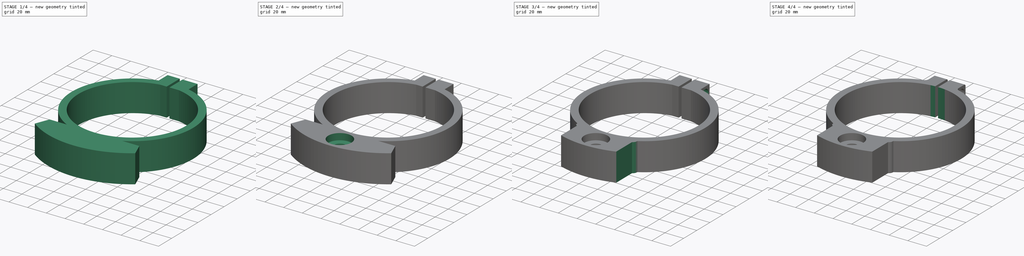
[diagram: build sequence overview — one tinted view per stage of 4, left to right]
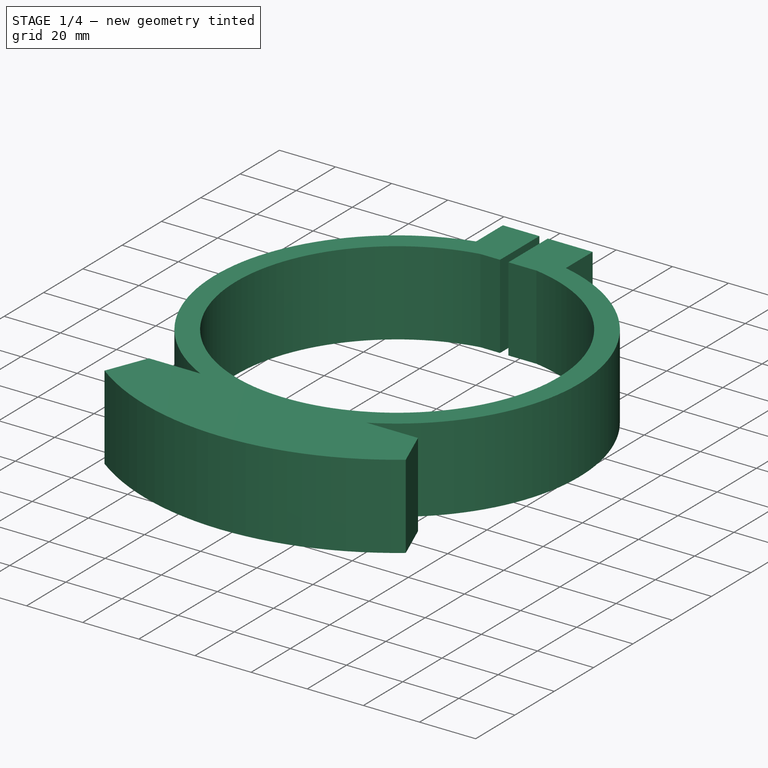
[diagram: stage 1 of 4 — iso view after this stage's code; geometry added in this stage tinted green]
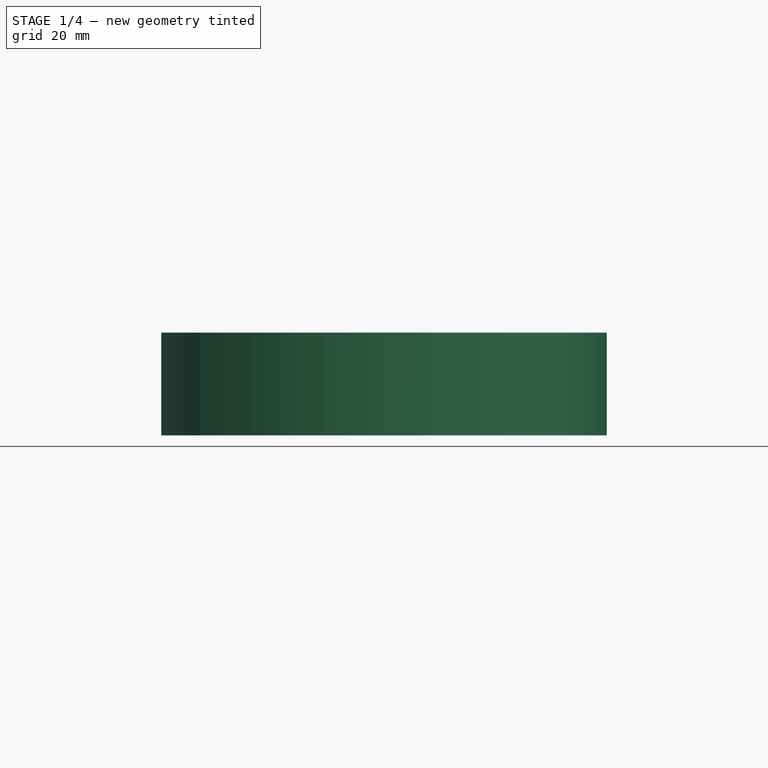
[diagram: stage 1 of 4 — front view after this stage's code; geometry added in this stage tinted green]
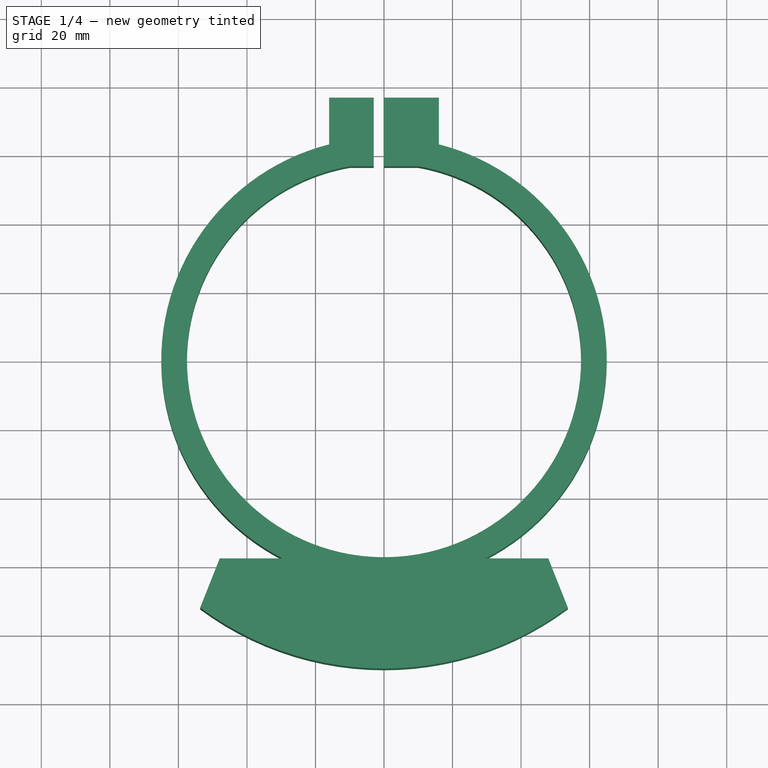
[diagram: stage 1 of 4 — top view after this stage's code; geometry added in this stage tinted green]
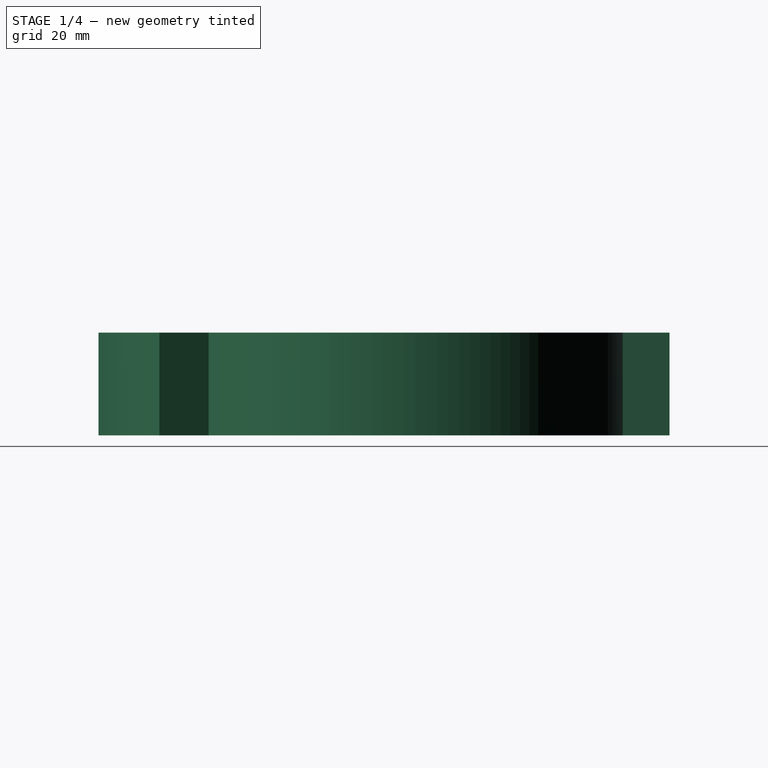
[diagram: stage 1 of 4 — right view after this stage's code; geometry added in this stage tinted green]
FCSTD DOCUMENT  (FreeCAD 1.0R39109 (Git))
Label: PVC_lock
License: All rights reserved
LicenseURL: https://en.wikipedia.org/wiki/All_rights_reserved
objects: Sketcher::SketchObject×8, PartDesign::Pocket×5, PartDesign::Pad×2, PartDesign::Chamfer×2, PartDesign::Hole×2, PartDesign::Fillet×2, PartDesign::Body×1
note: 56 computed .brp shape members not serialized (recipe doc carries the construction recipe); baked Part::Feature solids carry a one-line shape summary decoded from their .brp

FEATURE [Sketcher::SketchObject] Sketch
  ArcFitTolerance = 1e-06
  AttachmentSupport = -> [XY_Plane]
  FullyConstrained = false
  MakeInternals = false
  MapMode = 5
  sketch-geometry (19):
    g0: ArcOfCircle CenterX=0 CenterY=0 CenterZ=0 NormalX=0 NormalY=0 NormalZ=1 AngleXU=0 Radius=57.5 StartAngle=1.7456 EndAngle=7.67918
    g1: ArcOfCircle CenterX=0 CenterY=0 CenterZ=0 NormalX=0 NormalY=0 NormalZ=1 AngleXU=0 Radius=65 StartAngle=5.18581 EndAngle=7.60527
    g2: ArcOfCircle CenterX=0 CenterY=0 CenterZ=0 NormalX=0 NormalY=0 NormalZ=1 AngleXU=0 Radius=90 StartAngle=3.83972 EndAngle=5.58505
    g3: LineSegment StartX=68.944 StartY=-57.8509 StartZ=0 EndX=29.6357 EndY=-57.8509 EndZ=0
    g4: LineSegment StartX=-68.944 StartY=-57.8509 StartZ=0 EndX=-29.6357 EndY=-57.8509 EndZ=0
    g5: LineSegment [constr] StartX=-10 StartY=0 StartZ=0 EndX=10 EndY=0 EndZ=0
    g6: LineSegment [constr] StartX=10 StartY=0 StartZ=0 EndX=10 EndY=100 EndZ=0
    g7: LineSegment [constr] StartX=-10 StartY=0 StartZ=0 EndX=-10 EndY=100 EndZ=0
    g8: ArcOfCircle CenterX=0 CenterY=0 CenterZ=0 NormalX=0 NormalY=0 NormalZ=1 AngleXU=0 Radius=65 StartAngle=1.81951 EndAngle=4.23897
    g9: LineSegment StartX=16 StartY=63 StartZ=0 EndX=16 EndY=76.6238 EndZ=0
    g10: LineSegment StartX=16 StartY=76.6238 StartZ=0 EndX=10 EndY=76.6238 EndZ=0
    g11: LineSegment StartX=-10 StartY=76.6238 StartZ=0 EndX=-16 EndY=76.6238 EndZ=0
    g12: LineSegment StartX=-16 StartY=76.6238 StartZ=0 EndX=-16 EndY=63 EndZ=0
    g13: LineSegment StartX=-10 StartY=56.6238 StartZ=0 EndX=-3 EndY=56.6238 EndZ=0
    g14: LineSegment StartX=-3 StartY=56.6238 StartZ=0 EndX=-3 EndY=76.6238 EndZ=0
    g15: LineSegment StartX=-3 StartY=76.6238 StartZ=0 EndX=-10 EndY=76.6238 EndZ=0
    g16: LineSegment StartX=10 StartY=76.6238 StartZ=0 EndX=0 EndY=76.6238 EndZ=0
    g17: LineSegment StartX=0 StartY=76.6238 StartZ=0 EndX=0 EndY=56.6238 EndZ=0
    g18: LineSegment StartX=0 StartY=56.6238 StartZ=0 EndX=10 EndY=56.6238 EndZ=0
  constraints (52):
    c: Diameter(g0) = 115
    c: Coincident(g0,g-1)
    c: Diameter(g1) = 130
    c: Coincident(g1,g0)
    c: Radius(g2) = 90
    c: Angle(g2) = 1.74533
    c: Coincident(g2,g0)
    c: Coincident(g3,g2)
    c: Coincident(g4,g2)
    c: Horizontal(g4)
    c: Horizontal(g3)
    c: DistanceY(g3,g4) = 0
    c: Coincident(g8,g4)
    c: Coincident(g1,g3)
    c: Distance(g5) = 20
    c: PointOnObject(g5,g-1)
    c: PointOnObject(g5,g-1)
    c: DistanceX(g0,g5) = 10
    c: Distance(g6) = 100
    c: Coincident(g6,g5)
    c: Vertical(g6)
    c: Distance(g7) = 100
    c: Coincident(g7,g5)
    c: Vertical(g7)
    c: PointOnObject(g0,g6)
    c: Equal(g1,g8)
    c: Coincident(g1,g8)
    c: PointOnObject(g0,g7)
    c: Coincident(g9,g10)
    c: Horizontal(g10)
    c: Vertical(g9)
    c: Distance(g0,g10) = 20
    c: Coincident(g11,g12)
    c: Vertical(g12)
    c: Horizontal(g11)
    c: Coincident(g13,g14)
    c: Coincident(g14,g15)
    c: Vertical(g14)
    c: Horizontal(g13)
    c: Horizontal(g15)
    c: Distance(g15,g14) = 7
    c: Distance(g13,g15) = 20
    c: Coincident(g16,g17)
    c: Coincident(g17,g18)
    c: Horizontal(g16)
    c: Horizontal(g18)
    c: Vertical(g17)
    c: Distance(g16,g18) = 20
    c: Coincident(g16,g10)
    c: PointOnObject(g17,g-2)
    c: Coincident(g12,g8)
    c: Coincident(g9,g1)
FEATURE [PartDesign::Pad] Pad
  Direction = (0,0,1)
  Length = 30
  Length2 = 10
  Profile = -> Sketch
  ReferenceAxis = -> Sketch [N_Axis]
  Refine = true
  Suppressed = false
  Type = 0
FEATURE [PartDesign::Chamfer] Chamfer
  Angle = 45
  Base = -> Pad [Edge33]
  BaseFeature = -> Pad
  ChamferType = 0
  FlipDirection = false
  Refine = true
  Size = 21
  Size2 = 1
  SupportTransform = false
  Suppressed = false
  UseAllEdges = false
FEATURE [PartDesign::Chamfer] Chamfer001
  Angle = 45
  Base = -> Chamfer [Edge17]
  BaseFeature = -> Chamfer
  ChamferType = 0
  FlipDirection = false
  Refine = true
  Size = 21
  Size2 = 1
  SupportTransform = false
  Suppressed = false
  UseAllEdges = false
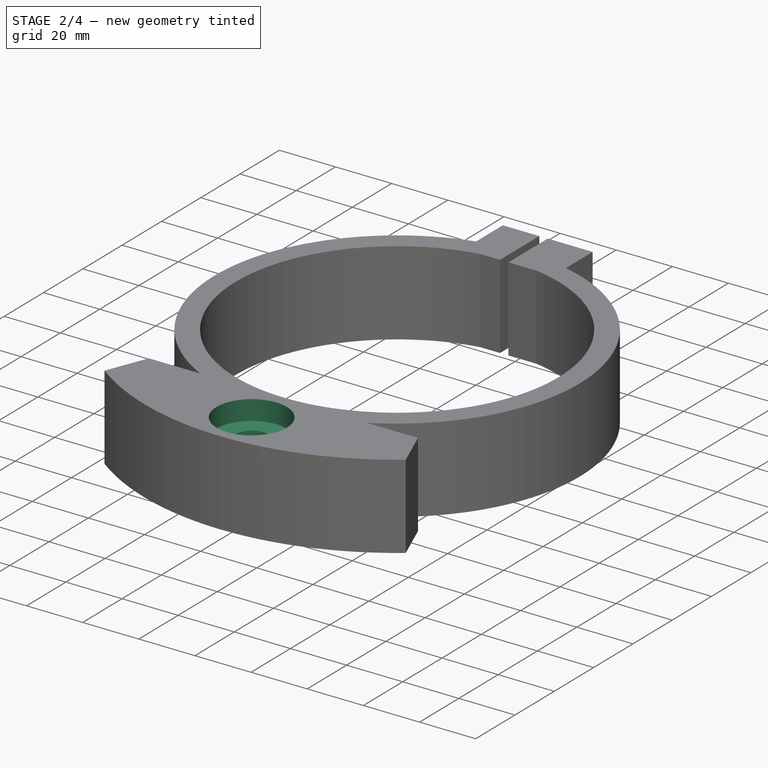
[diagram: stage 2 of 4 — iso view after this stage's code; geometry added in this stage tinted green]
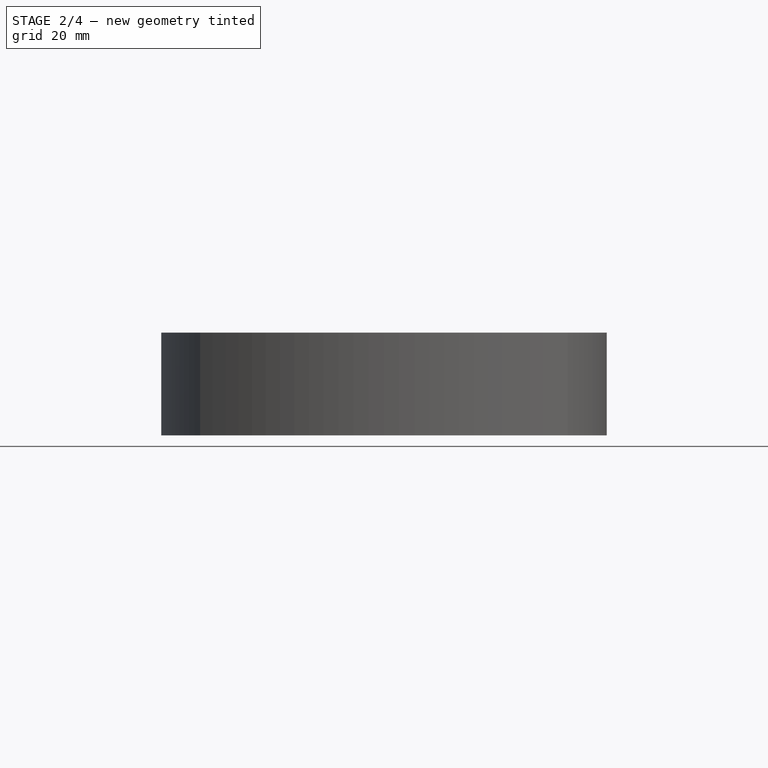
[diagram: stage 2 of 4 — front view after this stage's code; geometry added in this stage tinted green]
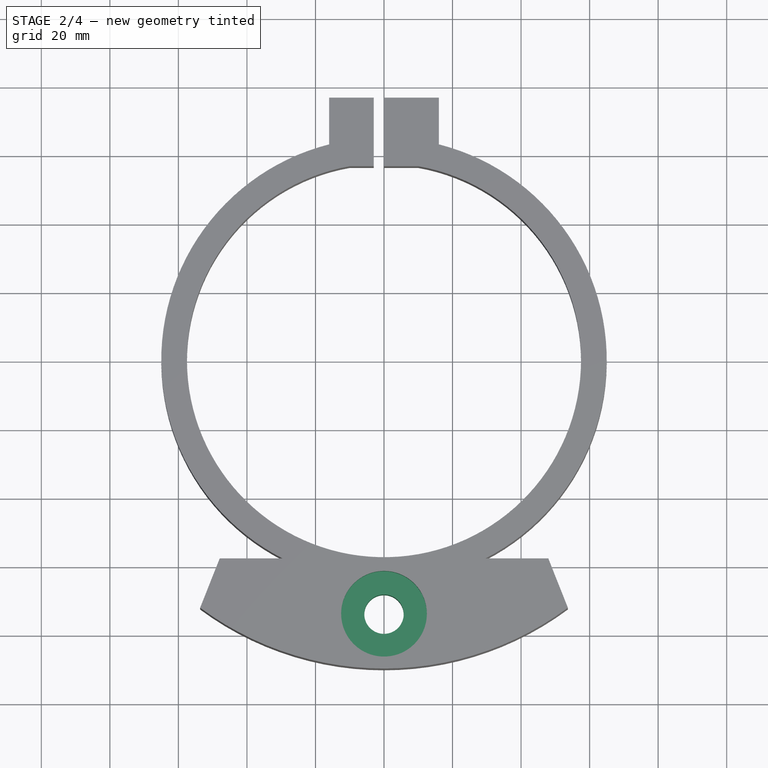
[diagram: stage 2 of 4 — top view after this stage's code; geometry added in this stage tinted green]
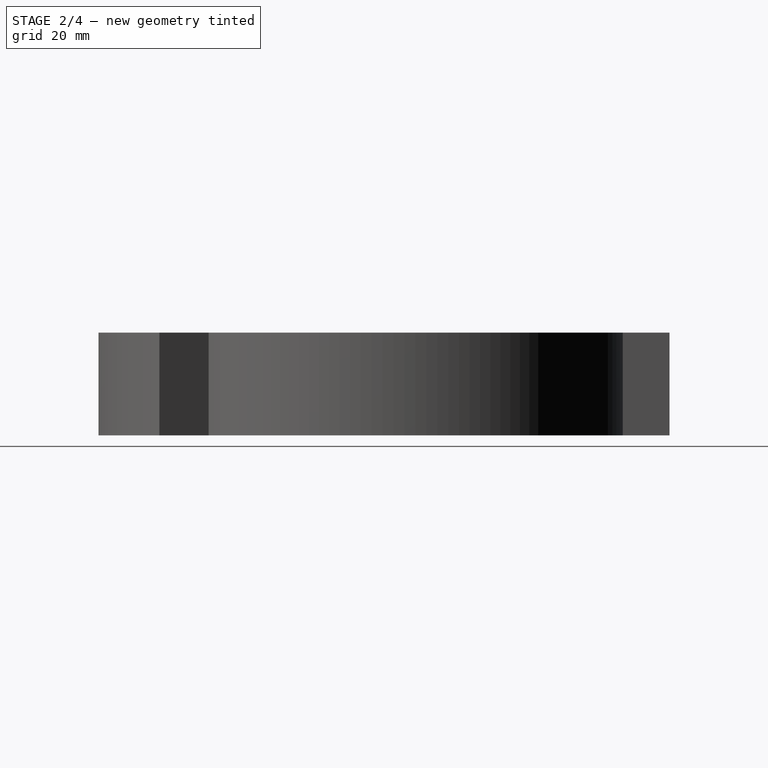
[diagram: stage 2 of 4 — right view after this stage's code; geometry added in this stage tinted green]
FEATURE [Sketcher::SketchObject] Sketch001
  ArcFitTolerance = 1e-06
  AttachmentSupport = -> [Chamfer001]
  FullyConstrained = true
  MakeInternals = false
  MapMode = 5
  Placement = pos=(0,0,30) rot=(0,0,1;0rad)
  sketch-geometry (1):
    g0: Circle CenterX=0 CenterY=-74 CenterZ=0 NormalX=0 NormalY=0 NormalZ=1 AngleXU=0 Radius=12.5
  constraints (3):
    c: Diameter(g0) = 25
    c: PointOnObject(g0,g-2)
    c: DistanceY(g0,g-1) = 74
FEATURE [PartDesign::Pocket] Pocket
  BaseFeature = -> Chamfer001
  Direction = (0,0,-1)
  Length = 7
  Length2 = 5
  Profile = -> Sketch001
  ReferenceAxis = -> Sketch001 [N_Axis]
  Refine = true
  Suppressed = false
  Type = 0
FEATURE [Sketcher::SketchObject] Sketch002
  ArcFitTolerance = 1e-06
  AttachmentSupport = -> [Pocket]
  FullyConstrained = true
  MakeInternals = false
  MapMode = 5
  Placement = pos=(0,0,0) rot=(1,0,0;3.14159rad)
  sketch-geometry (1):
    g0: Circle CenterX=0 CenterY=74 CenterZ=0 NormalX=0 NormalY=0 NormalZ=1 AngleXU=0 Radius=12.5
  constraints (3):
    c: Diameter(g0) = 25
    c: PointOnObject(g0,g-2)
    c: DistanceY(g-1,g0) = 74
FEATURE [PartDesign::Pocket] Pocket001
  BaseFeature = -> Pocket
  Direction = (0,0,1)
  Length = 7
  Length2 = 5
  Profile = -> Sketch002
  ReferenceAxis = -> Sketch002 [N_Axis]
  Refine = true
  Suppressed = false
  Type = 0
FEATURE [Sketcher::SketchObject] Sketch003
  ArcFitTolerance = 1e-06
  AttachmentSupport = -> [Pocket001]
  FullyConstrained = true
  MakeInternals = false
  MapMode = 5
  Placement = pos=(0,0,7) rot=(1,0,0;3.14159rad)
  sketch-geometry (1):
    g0: Circle CenterX=0 CenterY=74 CenterZ=0 NormalX=0 NormalY=0 NormalZ=1 AngleXU=0 Radius=5.75
  constraints (3):
    c: Diameter(g0) = 11.5
    c: PointOnObject(g0,g-2)
    c: DistanceY(g-1,g0) = 74
FEATURE [PartDesign::Pocket] Pocket002
  BaseFeature = -> Pocket001
  Direction = (0,0,1)
  Length = 200
  Length2 = 5
  Profile = -> Sketch003
  ReferenceAxis = -> Sketch003 [N_Axis]
  Refine = true
  Suppressed = false
  Type = 0
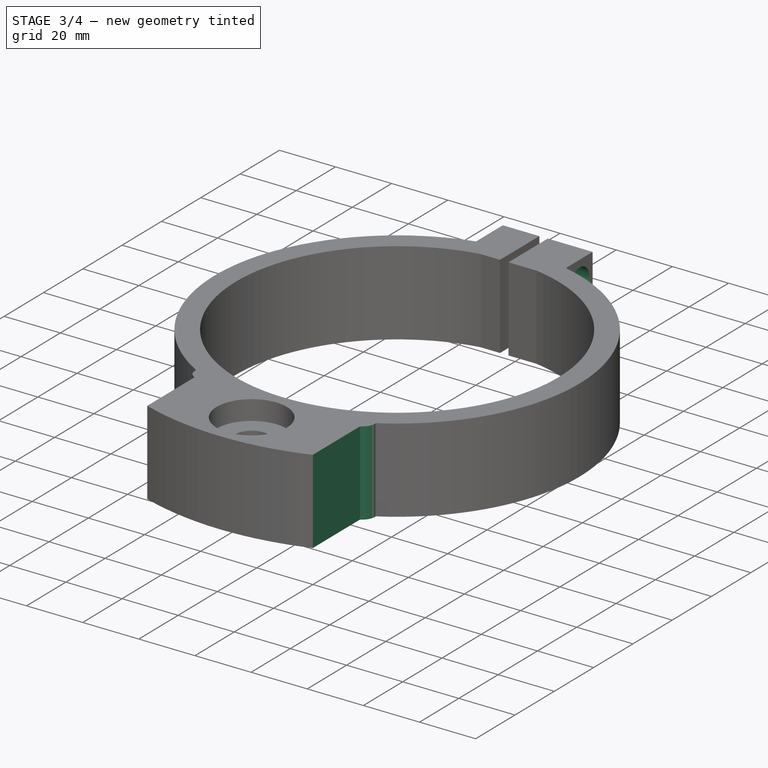
[diagram: stage 3 of 4 — iso view after this stage's code; geometry added in this stage tinted green]
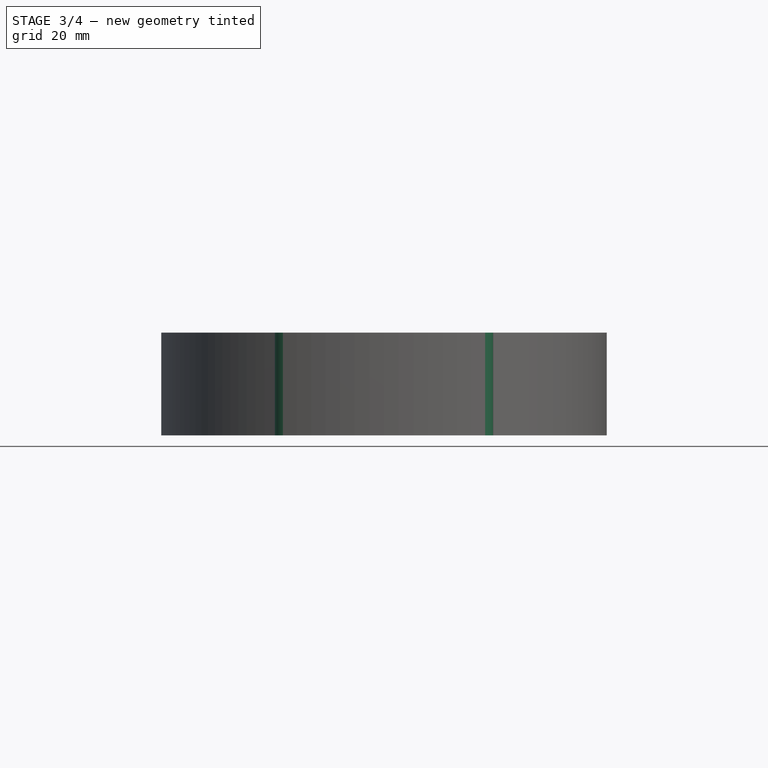
[diagram: stage 3 of 4 — front view after this stage's code; geometry added in this stage tinted green]
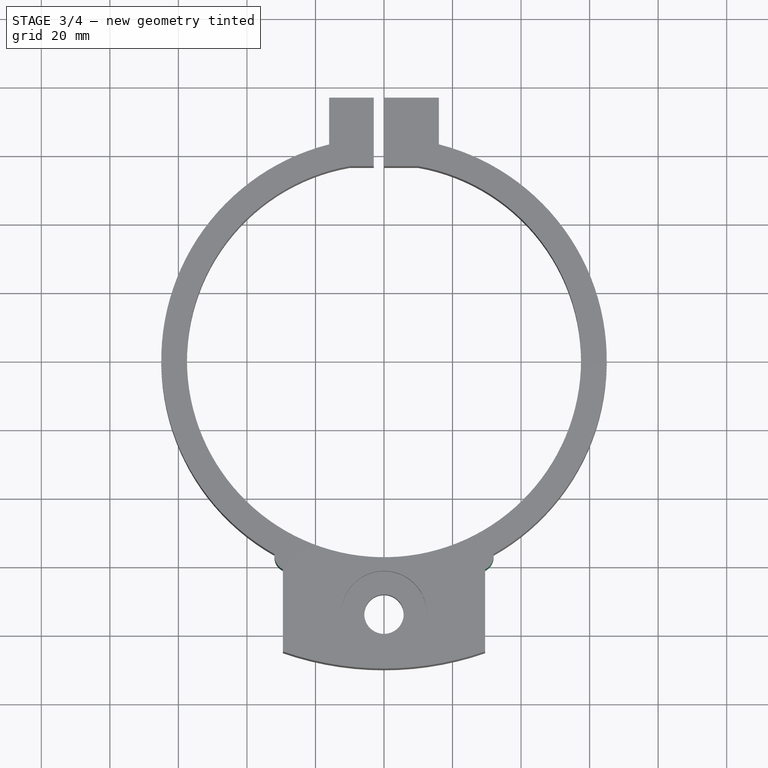
[diagram: stage 3 of 4 — top view after this stage's code; geometry added in this stage tinted green]
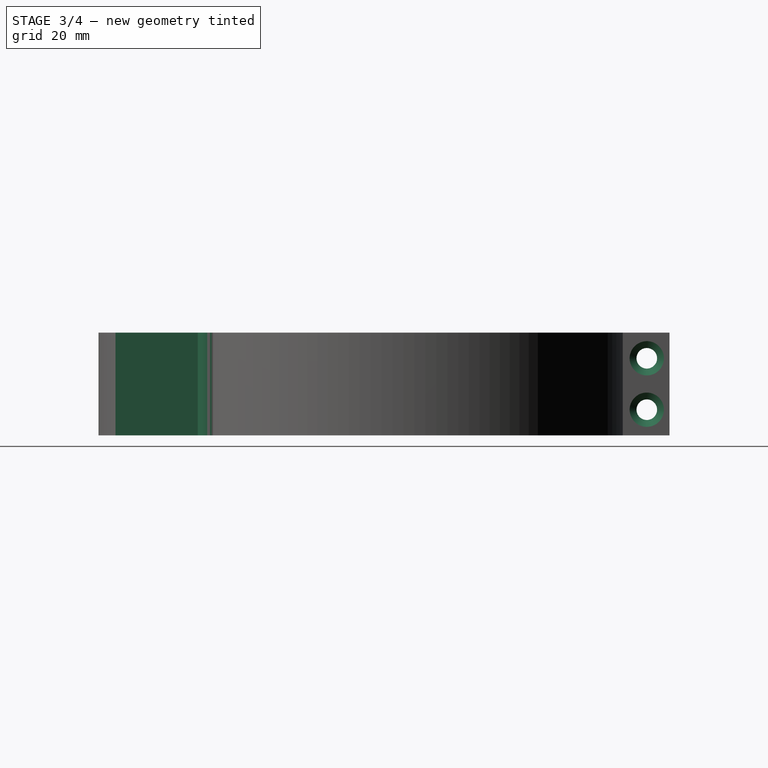
[diagram: stage 3 of 4 — right view after this stage's code; geometry added in this stage tinted green]
FEATURE [Sketcher::SketchObject] Sketch004
  ArcFitTolerance = 1e-06
  AttachmentSupport = -> [Pocket002]
  FullyConstrained = false
  MakeInternals = false
  MapMode = 5
  Placement = pos=(0,0,30) rot=(0,0,1;0rad)
  sketch-geometry (8):
    g0: LineSegment StartX=-59.6893 StartY=-57.7 StartZ=0 EndX=-59.6893 EndY=-97.9884 EndZ=0
    g1: LineSegment StartX=-59.6893 StartY=-97.9884 StartZ=0 EndX=-29.5 EndY=-97.9884 EndZ=0
    g2: LineSegment StartX=-29.5 StartY=-97.9884 StartZ=0 EndX=-29.5 EndY=-57.7 EndZ=0
    g3: LineSegment StartX=-29.5 StartY=-57.7 StartZ=0 EndX=-59.6893 EndY=-57.7 EndZ=0
    g4: LineSegment StartX=29.5 StartY=-57.7 StartZ=0 EndX=29.5 EndY=-113.878 EndZ=0
    g5: LineSegment StartX=29.5 StartY=-113.878 StartZ=0 EndX=59.1271 EndY=-113.878 EndZ=0
    g6: LineSegment StartX=59.1271 StartY=-113.878 StartZ=0 EndX=59.1271 EndY=-57.7 EndZ=0
    g7: LineSegment StartX=59.1271 StartY=-57.7 StartZ=0 EndX=29.5 EndY=-57.7 EndZ=0
  constraints (20):
    c: Coincident(g0,g1)
    c: Coincident(g1,g2)
    c: Coincident(g2,g3)
    c: Coincident(g3,g0)
    c: Vertical(g0)
    c: Vertical(g2)
    c: Horizontal(g1)
    c: Horizontal(g3)
    c: Coincident(g4,g5)
    c: Coincident(g5,g6)
    c: Coincident(g6,g7)
    c: Coincident(g7,g4)
    c: Vertical(g4)
    c: Vertical(g6)
    c: Horizontal(g5)
    c: Horizontal(g7)
    c: DistanceX(g2,g-1) = 29.5
    c: DistanceX(g-1,g4) = 29.5
    c: DistanceY(g2,g4) = 0
    c: DistanceY(g4,g-1) = 57.7
FEATURE [PartDesign::Pocket] Pocket003
  BaseFeature = -> Pocket002
  Direction = (0,0,-1)
  Length = 33
  Length2 = 5
  Profile = -> Sketch004
  ReferenceAxis = -> Sketch004 [N_Axis]
  Refine = true
  Suppressed = false
  Type = 0
FEATURE [Sketcher::SketchObject] Sketch005
  ArcFitTolerance = 1e-06
  AttachmentSupport = -> [Pocket003]
  FullyConstrained = true
  MakeInternals = false
  MapMode = 5
  Placement = pos=(16,0,0) rot=(0.57735,0.57735,0.57735;2.0944rad)
  sketch-geometry (2):
    g0: Circle CenterX=70 CenterY=22.5 CenterZ=0 NormalX=0 NormalY=0 NormalZ=1 AngleXU=0 Radius=5
    g1: Circle CenterX=70 CenterY=7.5 CenterZ=0 NormalX=0 NormalY=0 NormalZ=1 AngleXU=0 Radius=5
  constraints (6):
    c: Diameter(g0) = 10
    c: Diameter(g1) = 10
    c: DistanceX(g0,g1) = 0
    c: DistanceX(g-1,g1) = 70
    c: DistanceY(g1,g0) = 15
    c: DistanceY(g-1,g1) = 7.5
FEATURE [PartDesign::Hole] Hole
  BaseFeature = -> Pocket003
  CustomThreadClearance = 0
  Depth = 50
  DepthType = 0
  Diameter = 6
  DrillForDepth = false
  DrillPoint = 1
  DrillPointAngle = 118
  HoleCutCountersinkAngle = 90
  HoleCutCustomValues = false
  HoleCutDepth = 0
  HoleCutDiameter = 6.1
  HoleCutType = 0
  ModelThread = false
  Profile = -> Sketch005
  Refine = true
  Suppressed = false
  Tapered = false
  TaperedAngle = 90
  ThreadClass = 0
  ThreadDepth = 50
  ThreadDepthType = 0
  ThreadDirection = 0
  ThreadFit = 0
  ThreadSize = 0
  ThreadType = 0
  Threaded = false
  UseCustomThreadClearance = false
FEATURE [PartDesign::Hole] Hole001
  BaseFeature = -> Hole
  CustomThreadClearance = 0
  Depth = 6
  DepthType = 0
  Diameter = 10
  DrillForDepth = false
  DrillPoint = 1
  DrillPointAngle = 118
  HoleCutCountersinkAngle = 90
  HoleCutCustomValues = false
  HoleCutDepth = 0
  HoleCutDiameter = 6.1
  HoleCutType = 0
  ModelThread = false
  Profile = -> Hole [Edge50,Edge49]
  Refine = true
  Suppressed = false
  Tapered = false
  TaperedAngle = 90
  ThreadClass = 0
  ThreadDepth = 6
  ThreadDepthType = 0
  ThreadDirection = 0
  ThreadFit = 0
  ThreadSize = 0
  ThreadType = 0
  Threaded = false
  UseCustomThreadClearance = false
FEATURE [Sketcher::SketchObject] Sketch006
  ArcFitTolerance = 1e-06
  AttachmentSupport = -> [Hole001]
  FullyConstrained = true
  MakeInternals = false
  MapMode = 5
  Placement = pos=(0,0,30) rot=(0,0,1;0rad)
  sketch-geometry (2):
    g0: Circle CenterX=-27.5 CenterY=-57 CenterZ=0 NormalX=0 NormalY=0 NormalZ=1 AngleXU=0 Radius=4.5
    g1: Circle CenterX=27.5 CenterY=-57 CenterZ=0 NormalX=0 NormalY=0 NormalZ=1 AngleXU=0 Radius=4.5
  constraints (6):
    c: Diameter(g0) = 9
    c: Diameter(g1) = 9
    c: DistanceX(g-1,g1) = 27.5
    c: DistanceY(g1,g-1) = 57
    c: DistanceY(g0,g-1) = 57
    c: DistanceX(g0,g-1) = 27.5
FEATURE [PartDesign::Pad] Pad001
  BaseFeature = -> Hole001
  Direction = (0,0,1)
  Length = 30
  Length2 = 10
  Profile = -> Sketch006
  ReferenceAxis = -> Sketch006 [N_Axis]
  Refine = true
  Reversed = true
  Suppressed = false
  Type = 0
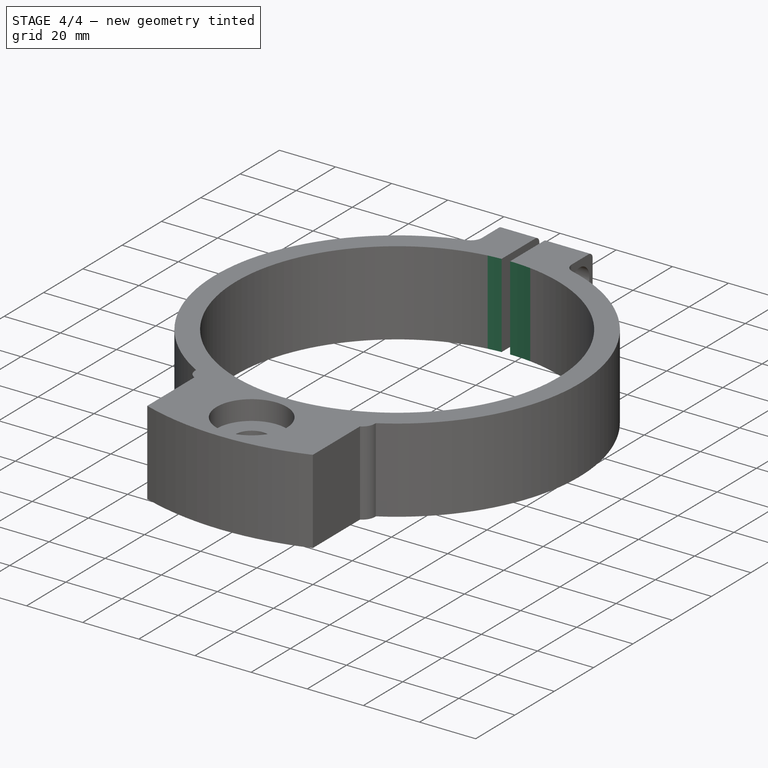
[diagram: stage 4 of 4 — iso view after this stage's code; geometry added in this stage tinted green]
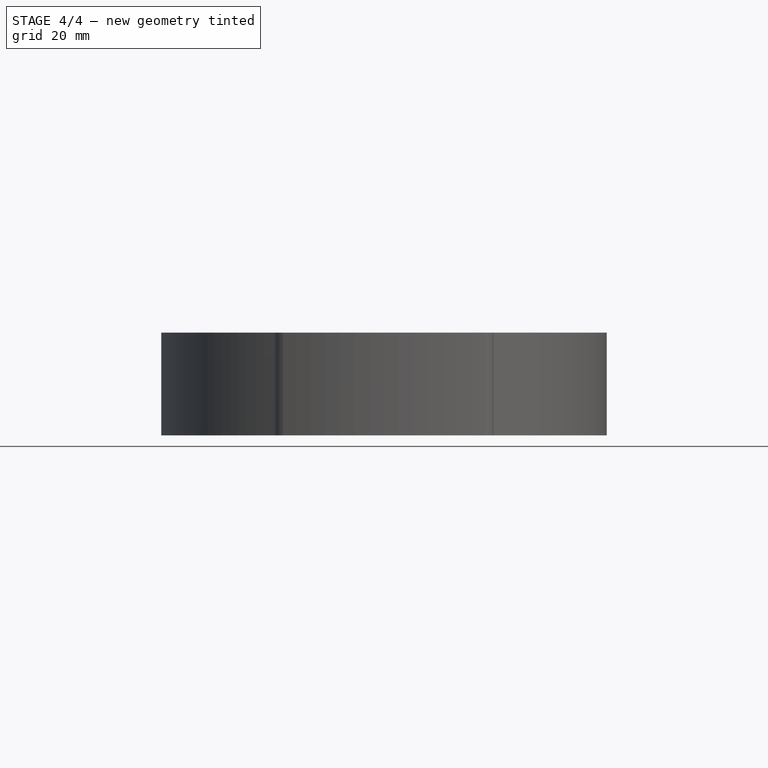
[diagram: stage 4 of 4 — front view after this stage's code; geometry added in this stage tinted green]
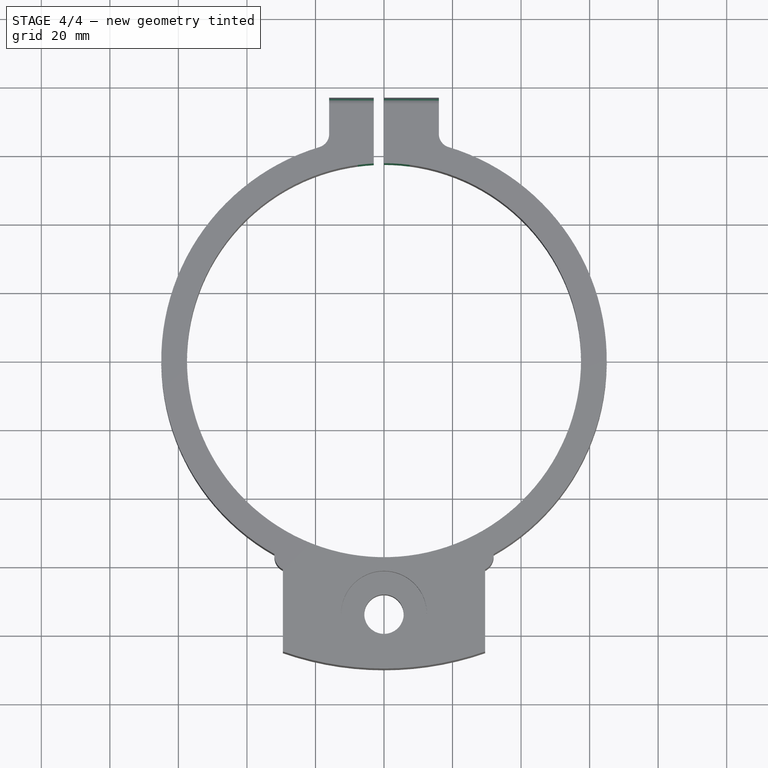
[diagram: stage 4 of 4 — top view after this stage's code; geometry added in this stage tinted green]
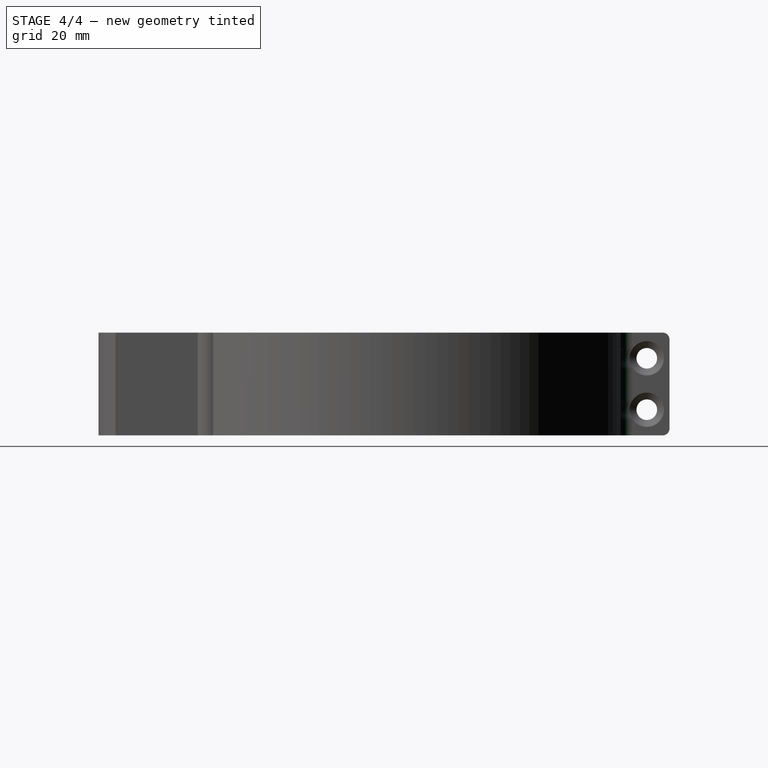
[diagram: stage 4 of 4 — right view after this stage's code; geometry added in this stage tinted green]
FEATURE [Sketcher::SketchObject] Sketch007
  ArcFitTolerance = 1e-06
  AttachmentSupport = -> [Pad001]
  FullyConstrained = true
  MakeInternals = false
  MapMode = 5
  Placement = pos=(0,0,30) rot=(0,0,1;0rad)
  sketch-geometry (1):
    g0: Circle CenterX=0 CenterY=0 CenterZ=0 NormalX=0 NormalY=0 NormalZ=1 AngleXU=0 Radius=57.5
  constraints (2):
    c: Diameter(g0) = 115
    c: Coincident(g0,g-1)
FEATURE [PartDesign::Pocket] Pocket004
  BaseFeature = -> Pad001
  Direction = (0,0,-1)
  Length = 50
  Length2 = 5
  Profile = -> Sketch007
  ReferenceAxis = -> Sketch007 [N_Axis]
  Refine = true
  Suppressed = false
  Type = 0
FEATURE [PartDesign::Fillet] Fillet
  Base = -> Pocket004 [Edge58,Edge45]
  BaseFeature = -> Pocket004
  Radius = 4
  Refine = true
  SupportTransform = false
  Suppressed = false
  UseAllEdges = false
FEATURE [PartDesign::Fillet] Fillet001
  Base = -> Fillet [Edge6,Edge20,Edge36,Edge73]
  BaseFeature = -> Fillet
  Radius = 2
  Refine = true
  SupportTransform = false
  Suppressed = false
  UseAllEdges = false
FEATURE [PartDesign::Body] Body
  AllowCompound = false
  Group = -> [Sketch,Pad,Chamfer,Chamfer001,Sketch001,Pocket,Sketch002,Pocket001,Sketch003,Pocket002,Sketch004,Pocket003,Sketch005,Hole,Hole001,Sketch006,Pad001,Sketch007,Pocket004,Fillet,Fillet001]
  Origin = -> Origin
  Tip = -> Fillet001
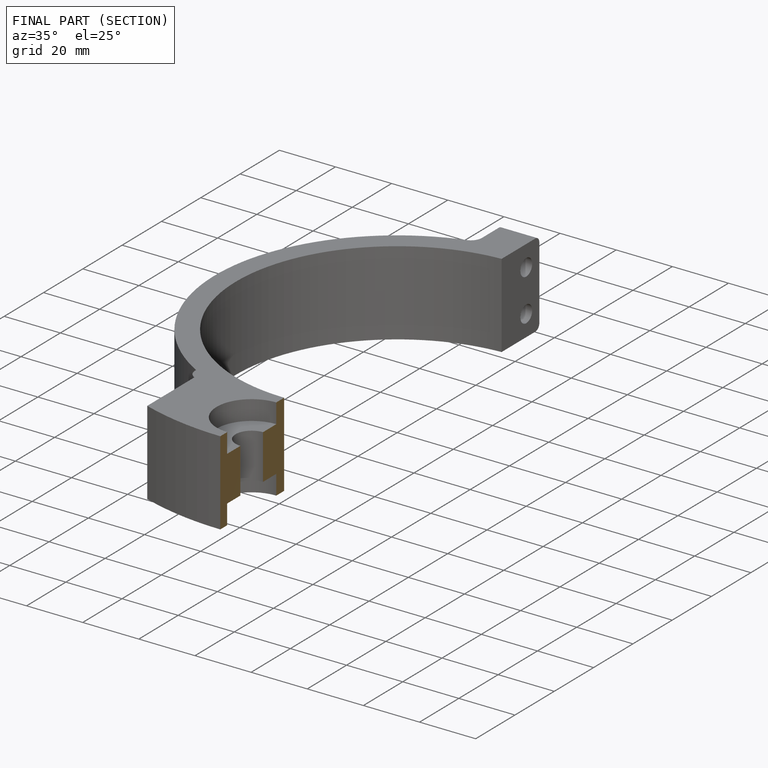
[diagram: finished part — half-section view (interior)]
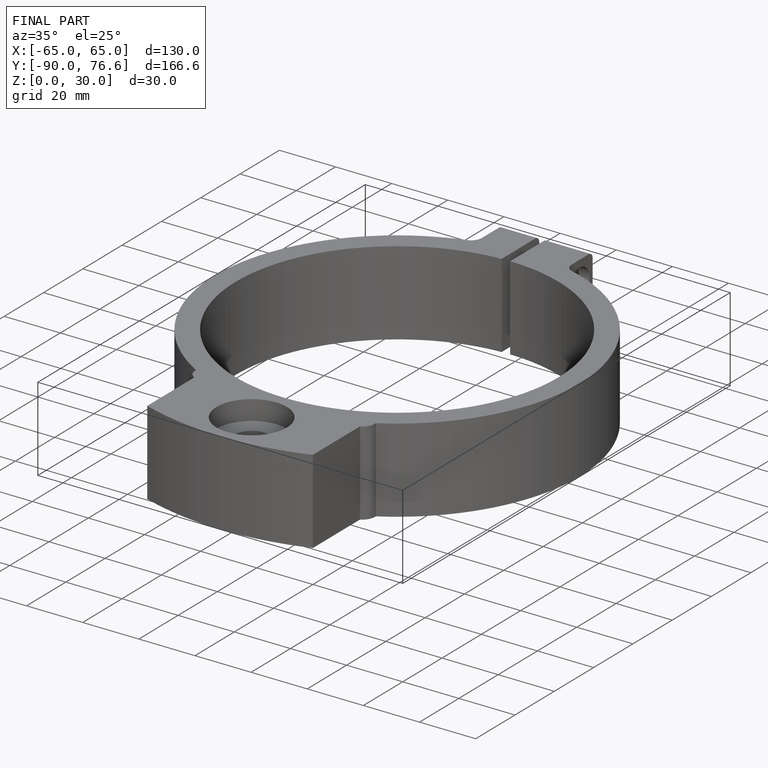
[diagram: finished part — iso view with bounding-box wireframe]
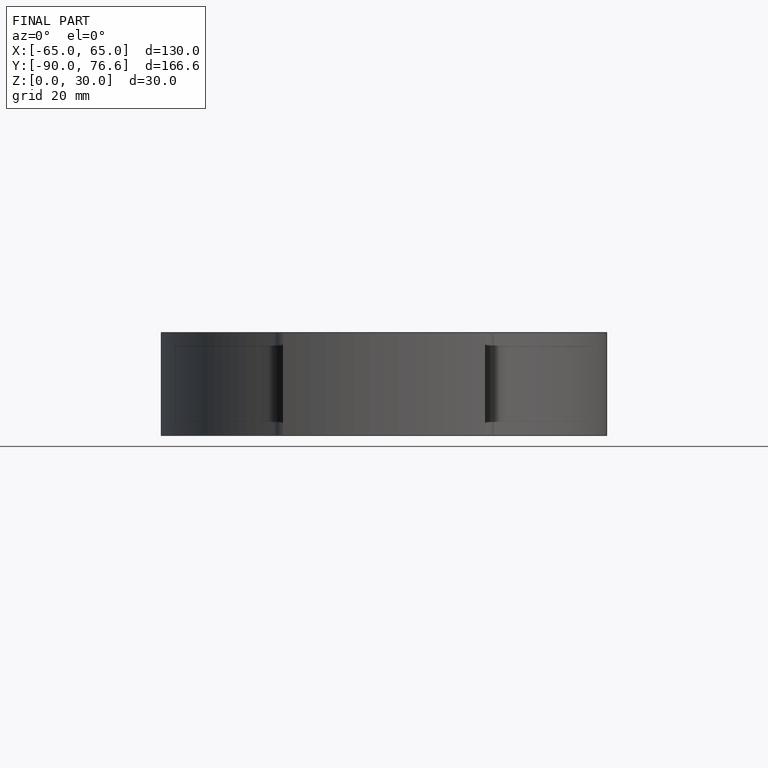
[diagram: finished part — front view with bounding-box wireframe]
